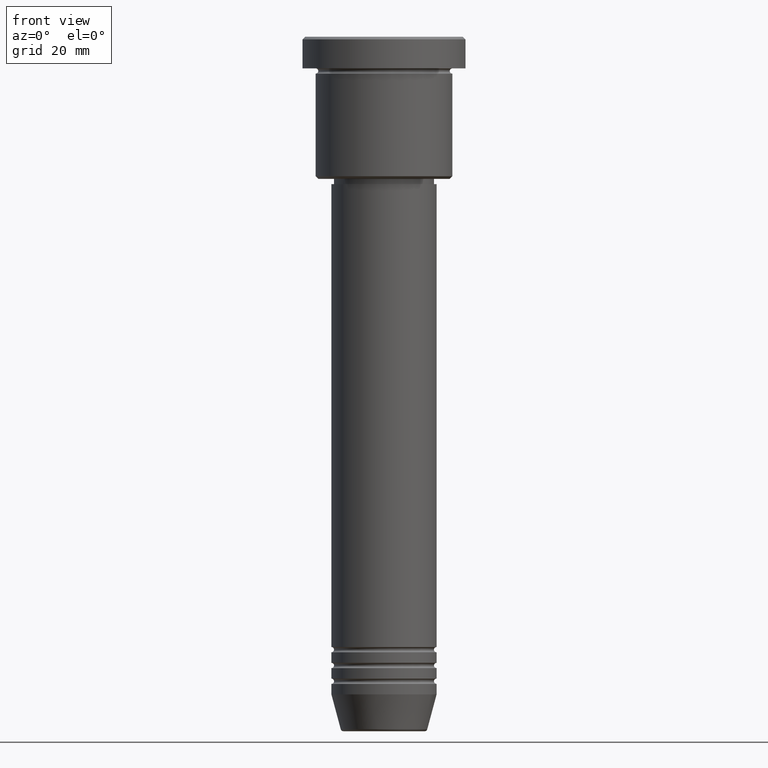
[diagram: clean part render]
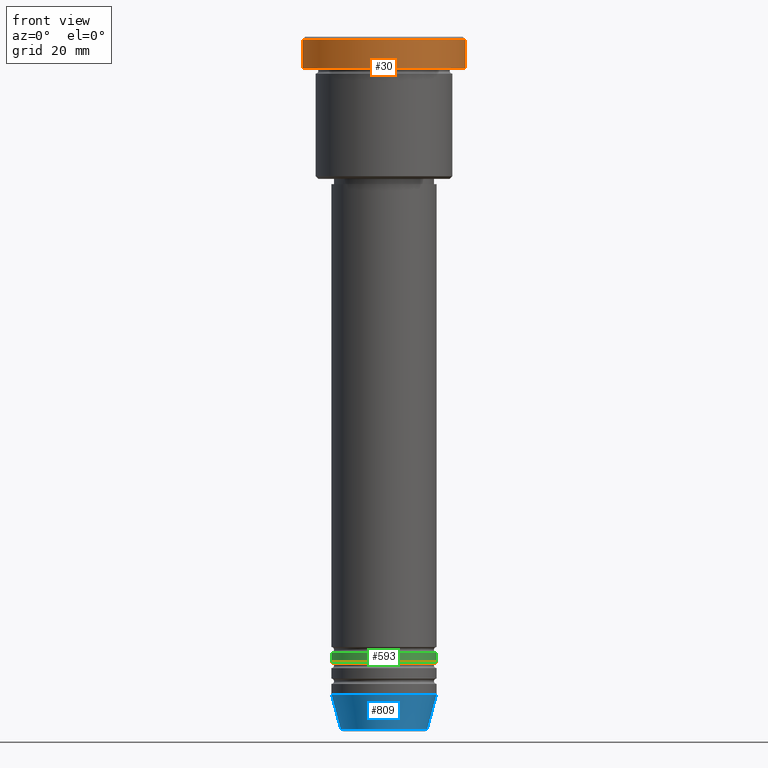
[diagram: same view with three faces highlighted in distinct colors, each labeled with its STEP entity id]
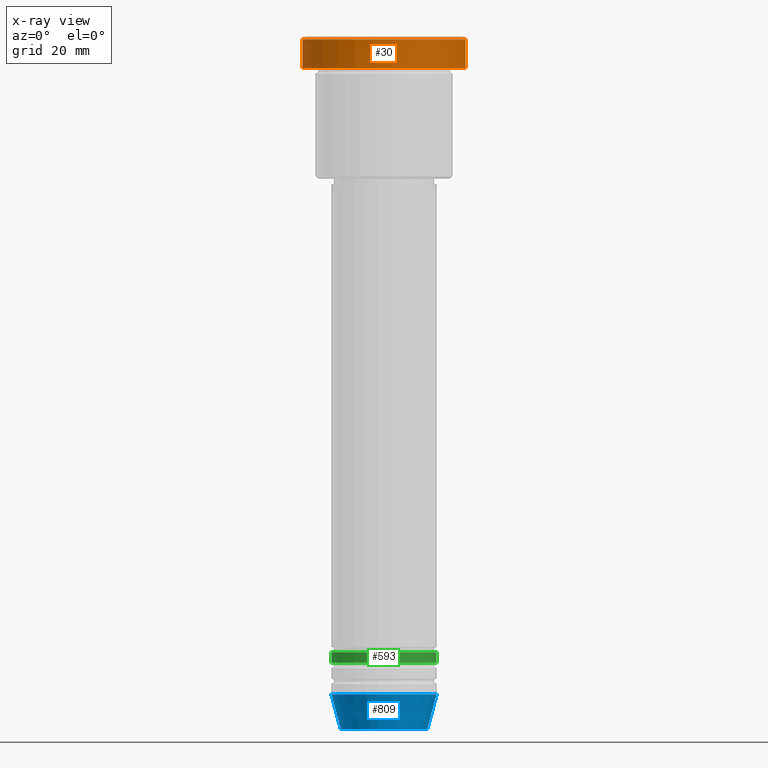
[diagram: x-ray of the same camera — body ghosted, the three highlighted faces saturated]
A machine part, front view with three faces highlighted in distinct colors.
The next image is the same camera in x-ray (body ghosted, the three faces saturated) — at least one of them is partly hidden behind the body in this view.
Their STEP definitions:

[orange] entity #30 — the highlighted cylindrical surface (partial cylindrical patch) has radius 15.5 mm, axis along (-0, -0, 1).
#30 = ADVANCED_FACE ( 'NONE', ( #138 ), #327, .T. ) ;
#122 = LINE ( 'NONE', #345, #1157 ) ;
#138 = FACE_OUTER_BOUND ( 'NONE', #346, .T. ) ;
#145 = CARTESIAN_POINT ( 'NONE',  ( 15.50000000000000000, 0.000000000000000000, -0.4999999999999848455 ) ) ;
#198 = AXIS2_PLACEMENT_3D ( 'NONE', #236, #505, #1151 ) ;
#201 = DIRECTION ( 'NONE',  ( -0.000000000000000000, -0.000000000000000000, 1.000000000000000000 ) ) ;
#230 = CARTESIAN_POINT ( 'NONE',  ( 0.000000000000000000, 0.000000000000000000, -5.999999999999995559 ) ) ;
#236 = CARTESIAN_POINT ( 'NONE',  ( 0.000000000000000000, 0.000000000000000000, 0.000000000000000000 ) ) ;
#241 = CARTESIAN_POINT ( 'NONE',  ( 0.000000000000000000, 0.000000000000000000, -0.4999999999999848455 ) ) ;
#261 = LINE ( 'NONE', #669, #719 ) ;
#276 = AXIS2_PLACEMENT_3D ( 'NONE', #230, #600, #871 ) ;
#316 = VERTEX_POINT ( 'NONE', #676 ) ;
#327 = CYLINDRICAL_SURFACE ( 'NONE', #198, 15.50000000000000000 ) ;
#336 = EDGE_CURVE ( 'NONE', #316, #617, #122, .T. ) ;
#345 = CARTESIAN_POINT ( 'NONE',  ( -15.50000000000000000, 1.898202538678397557E-15, 0.000000000000000000 ) ) ;
#346 = EDGE_LOOP ( 'NONE', ( #573, #971, #417, #811 ) ) ;
#383 = EDGE_CURVE ( 'NONE', #504, #440, #261, .T. ) ;
#396 = DIRECTION ( 'NONE',  ( 0.000000000000000000, 0.000000000000000000, -1.000000000000000000 ) ) ;
#397 = CARTESIAN_POINT ( 'NONE',  ( 15.50000000000000000, 0.000000000000000000, -5.999999999999995559 ) ) ;
#417 = ORIENTED_EDGE ( 'NONE', *, *, #383, .T. ) ;
#440 = VERTEX_POINT ( 'NONE', #145 ) ;
#502 = DIRECTION ( 'NONE',  ( 1.000000000000000000, 0.000000000000000000, 0.000000000000000000 ) ) ;
#504 = VERTEX_POINT ( 'NONE', #397 ) ;
#505 = DIRECTION ( 'NONE',  ( -0.000000000000000000, -0.000000000000000000, 1.000000000000000000 ) ) ;
#549 = CIRCLE ( 'NONE', #980, 15.50000000000000000 ) ;
#573 = ORIENTED_EDGE ( 'NONE', *, *, #336, .F. ) ;
#600 = DIRECTION ( 'NONE',  ( -0.000000000000000000, -0.000000000000000000, 1.000000000000000000 ) ) ;
#617 = VERTEX_POINT ( 'NONE', #1111 ) ;
#631 = DIRECTION ( 'NONE',  ( -0.000000000000000000, -0.000000000000000000, 1.000000000000000000 ) ) ;
#669 = CARTESIAN_POINT ( 'NONE',  ( 15.50000000000000000, 0.000000000000000000, 0.000000000000000000 ) ) ;
#676 = CARTESIAN_POINT ( 'NONE',  ( -15.50000000000000000, 1.898202538678397557E-15, -5.999999999999995559 ) ) ;
#719 = VECTOR ( 'NONE', #201, 1000.000000000000000 ) ;
#802 = CIRCLE ( 'NONE', #276, 15.50000000000000000 ) ;
#811 = ORIENTED_EDGE ( 'NONE', *, *, #1089, .T. ) ;
#871 = DIRECTION ( 'NONE',  ( 1.000000000000000000, 0.000000000000000000, 0.000000000000000000 ) ) ;
#971 = ORIENTED_EDGE ( 'NONE', *, *, #1147, .T. ) ;
#980 = AXIS2_PLACEMENT_3D ( 'NONE', #241, #396, #502 ) ;
#1089 = EDGE_CURVE ( 'NONE', #440, #617, #549, .T. ) ;
#1111 = CARTESIAN_POINT ( 'NONE',  ( -15.50000000000000000, 1.898202538678397557E-15, -0.4999999999999848455 ) ) ;
#1147 = EDGE_CURVE ( 'NONE', #316, #504, #802, .T. ) ;
#1151 = DIRECTION ( 'NONE',  ( 1.000000000000000000, 0.000000000000000000, 0.000000000000000000 ) ) ;
#1157 = VECTOR ( 'NONE', #631, 1000.000000000000000 ) ;

[blue] entity #809 — the highlighted conical surface has half-angle 15 deg.
#50 = CIRCLE ( 'NONE', #788, 10.00000000000000000 ) ;
#57 = EDGE_CURVE ( 'NONE', #691, #642, #317, .T. ) ;
#80 = EDGE_LOOP ( 'NONE', ( #1153, #235, #637, #1101 ) ) ;
#93 = VECTOR ( 'NONE', #896, 1000.000000000000000 ) ;
#98 = CONICAL_SURFACE ( 'NONE', #1140, 10.00000000000000000, 0.2617993877991500740 ) ;
#147 = CARTESIAN_POINT ( 'NONE',  ( 0.000000000000000000, 0.000000000000000000, -125.0000000000000000 ) ) ;
#154 = DIRECTION ( 'NONE',  ( -0.000000000000000000, -0.000000000000000000, 1.000000000000000000 ) ) ;
#235 = ORIENTED_EDGE ( 'NONE', *, *, #457, .T. ) ;
#317 = LINE ( 'NONE', #874, #430 ) ;
#427 = DIRECTION ( 'NONE',  ( -0.2588190451025213501, 3.169619151431772337E-17, 0.9659258262890680902 ) ) ;
#430 = VECTOR ( 'NONE', #427, 1000.000000000000000 ) ;
#457 = EDGE_CURVE ( 'NONE', #691, #716, #612, .T. ) ;
#493 = CARTESIAN_POINT ( 'NONE',  ( 8.223655072137191269, 0.000000000000000000, -131.6294095225512422 ) ) ;
#503 = FACE_OUTER_BOUND ( 'NONE', #80, .T. ) ;
#562 = DIRECTION ( 'NONE',  ( 1.000000000000000000, 0.000000000000000000, 0.000000000000000000 ) ) ;
#606 = DIRECTION ( 'NONE',  ( 1.000000000000000000, 0.000000000000000000, 0.000000000000000000 ) ) ;
#612 = CIRCLE ( 'NONE', #1158, 8.223655072137191269 ) ;
#627 = CARTESIAN_POINT ( 'NONE',  ( -8.223655072137191269, 1.115877042642912054E-15, -131.6294095225512422 ) ) ;
#632 = LINE ( 'NONE', #889, #93 ) ;
#637 = ORIENTED_EDGE ( 'NONE', *, *, #816, .T. ) ;
#642 = VERTEX_POINT ( 'NONE', #770 ) ;
#644 = DIRECTION ( 'NONE',  ( 1.000000000000000000, 0.000000000000000000, 0.000000000000000000 ) ) ;
#691 = VERTEX_POINT ( 'NONE', #627 ) ;
#716 = VERTEX_POINT ( 'NONE', #493 ) ;
#730 = DIRECTION ( 'NONE',  ( -0.000000000000000000, -0.000000000000000000, 1.000000000000000000 ) ) ;
#761 = CARTESIAN_POINT ( 'NONE',  ( 10.00000000000000000, 0.000000000000000000, -125.0000000000000000 ) ) ;
#770 = CARTESIAN_POINT ( 'NONE',  ( -10.00000000000000000, 1.224646799147353256E-15, -125.0000000000000000 ) ) ;
#788 = AXIS2_PLACEMENT_3D ( 'NONE', #963, #730, #644 ) ;
#809 = ADVANCED_FACE ( 'NONE', ( #503 ), #98, .T. ) ;
#816 = EDGE_CURVE ( 'NONE', #716, #994, #632, .T. ) ;
#823 = EDGE_CURVE ( 'NONE', #642, #994, #50, .T. ) ;
#874 = CARTESIAN_POINT ( 'NONE',  ( -10.00000000000000000, 1.224646799147353256E-15, -125.0000000000000000 ) ) ;
#889 = CARTESIAN_POINT ( 'NONE',  ( 10.00000000000000000, 0.000000000000000000, -125.0000000000000000 ) ) ;
#896 = DIRECTION ( 'NONE',  ( 0.2588190451025213501, 0.000000000000000000, 0.9659258262890680902 ) ) ;
#903 = DIRECTION ( 'NONE',  ( -0.000000000000000000, -0.000000000000000000, 1.000000000000000000 ) ) ;
#963 = CARTESIAN_POINT ( 'NONE',  ( 0.000000000000000000, 0.000000000000000000, -125.0000000000000000 ) ) ;
#994 = VERTEX_POINT ( 'NONE', #761 ) ;
#1005 = CARTESIAN_POINT ( 'NONE',  ( 0.000000000000000000, 0.000000000000000000, -131.6294095225512422 ) ) ;
#1101 = ORIENTED_EDGE ( 'NONE', *, *, #823, .F. ) ;
#1140 = AXIS2_PLACEMENT_3D ( 'NONE', #147, #154, #606 ) ;
#1153 = ORIENTED_EDGE ( 'NONE', *, *, #57, .F. ) ;
#1158 = AXIS2_PLACEMENT_3D ( 'NONE', #1005, #903, #562 ) ;

[green] entity #593 — the highlighted cylindrical surface (partial cylindrical patch) has radius 10 mm, axis along (-0, -0, 1).
#9 = AXIS2_PLACEMENT_3D ( 'NONE', #657, #1014, #763 ) ;
#19 = LINE ( 'NONE', #1137, #447 ) ;
#107 = DIRECTION ( 'NONE',  ( -0.000000000000000000, -0.000000000000000000, 1.000000000000000000 ) ) ;
#127 = LINE ( 'NONE', #234, #875 ) ;
#179 = VERTEX_POINT ( 'NONE', #728 ) ;
#221 = CARTESIAN_POINT ( 'NONE',  ( 10.00000000000000000, 0.000000000000000000, -118.9999999999999716 ) ) ;
#223 = CIRCLE ( 'NONE', #9, 10.00000000000000000 ) ;
#231 = VERTEX_POINT ( 'NONE', #221 ) ;
#234 = CARTESIAN_POINT ( 'NONE',  ( 10.00000000000000000, 0.000000000000000000, 0.000000000000000000 ) ) ;
#277 = CARTESIAN_POINT ( 'NONE',  ( 0.000000000000000000, 0.000000000000000000, -118.9999999999999716 ) ) ;
#285 = CARTESIAN_POINT ( 'NONE',  ( 0.000000000000000000, 0.000000000000000000, 0.000000000000000000 ) ) ;
#326 = ORIENTED_EDGE ( 'NONE', *, *, #771, .F. ) ;
#395 = AXIS2_PLACEMENT_3D ( 'NONE', #285, #749, #481 ) ;
#447 = VECTOR ( 'NONE', #107, 1000.000000000000000 ) ;
#466 = ORIENTED_EDGE ( 'NONE', *, *, #1180, .T. ) ;
#481 = DIRECTION ( 'NONE',  ( 1.000000000000000000, 0.000000000000000000, 0.000000000000000000 ) ) ;
#498 = VERTEX_POINT ( 'NONE', #854 ) ;
#579 = VERTEX_POINT ( 'NONE', #947 ) ;
#593 = ADVANCED_FACE ( 'NONE', ( #839 ), #861, .T. ) ;
#604 = EDGE_CURVE ( 'NONE', #179, #498, #223, .T. ) ;
#605 = DIRECTION ( 'NONE',  ( -0.000000000000000000, -0.000000000000000000, 1.000000000000000000 ) ) ;
#650 = DIRECTION ( 'NONE',  ( 1.000000000000000000, 0.000000000000000000, 0.000000000000000000 ) ) ;
#657 = CARTESIAN_POINT ( 'NONE',  ( 0.000000000000000000, 0.000000000000000000, -116.9999999999999858 ) ) ;
#728 = CARTESIAN_POINT ( 'NONE',  ( -10.00000000000000000, 1.224646799147353256E-15, -116.9999999999999858 ) ) ;
#749 = DIRECTION ( 'NONE',  ( -0.000000000000000000, -0.000000000000000000, 1.000000000000000000 ) ) ;
#763 = DIRECTION ( 'NONE',  ( 1.000000000000000000, 0.000000000000000000, 0.000000000000000000 ) ) ;
#771 = EDGE_CURVE ( 'NONE', #579, #179, #19, .T. ) ;
#832 = AXIS2_PLACEMENT_3D ( 'NONE', #277, #842, #650 ) ;
#839 = FACE_OUTER_BOUND ( 'NONE', #1134, .T. ) ;
#842 = DIRECTION ( 'NONE',  ( -0.000000000000000000, -0.000000000000000000, 1.000000000000000000 ) ) ;
#854 = CARTESIAN_POINT ( 'NONE',  ( 10.00000000000000000, 0.000000000000000000, -116.9999999999999858 ) ) ;
#861 = CYLINDRICAL_SURFACE ( 'NONE', #395, 10.00000000000000000 ) ;
#875 = VECTOR ( 'NONE', #605, 1000.000000000000000 ) ;
#920 = EDGE_CURVE ( 'NONE', #579, #231, #1055, .T. ) ;
#947 = CARTESIAN_POINT ( 'NONE',  ( -10.00000000000000000, 1.224646799147353256E-15, -118.9999999999999716 ) ) ;
#1007 = ORIENTED_EDGE ( 'NONE', *, *, #604, .F. ) ;
#1014 = DIRECTION ( 'NONE',  ( -0.000000000000000000, -0.000000000000000000, 1.000000000000000000 ) ) ;
#1032 = ORIENTED_EDGE ( 'NONE', *, *, #920, .T. ) ;
#1055 = CIRCLE ( 'NONE', #832, 10.00000000000000000 ) ;
#1134 = EDGE_LOOP ( 'NONE', ( #326, #1032, #466, #1007 ) ) ;
#1137 = CARTESIAN_POINT ( 'NONE',  ( -10.00000000000000000, 1.224646799147353256E-15, 0.000000000000000000 ) ) ;
#1180 = EDGE_CURVE ( 'NONE', #231, #498, #127, .T. ) ;